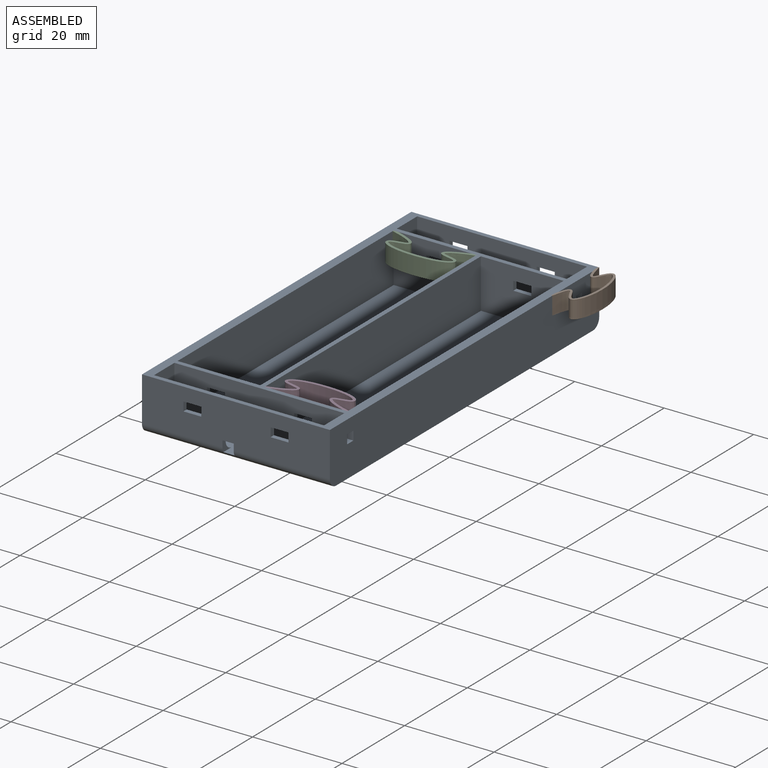
[diagram: assembled view]
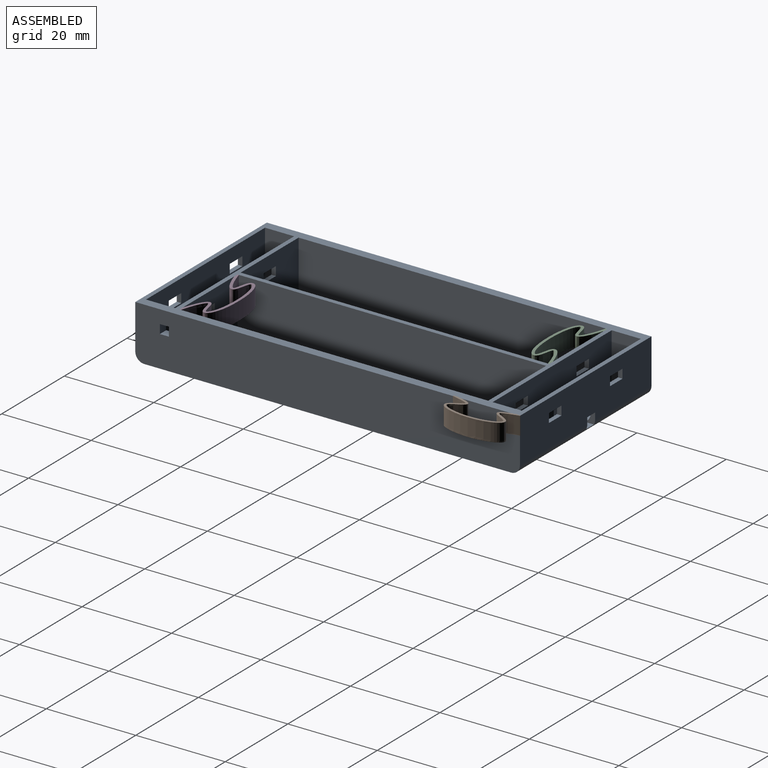
[diagram: assembled view, second angle]
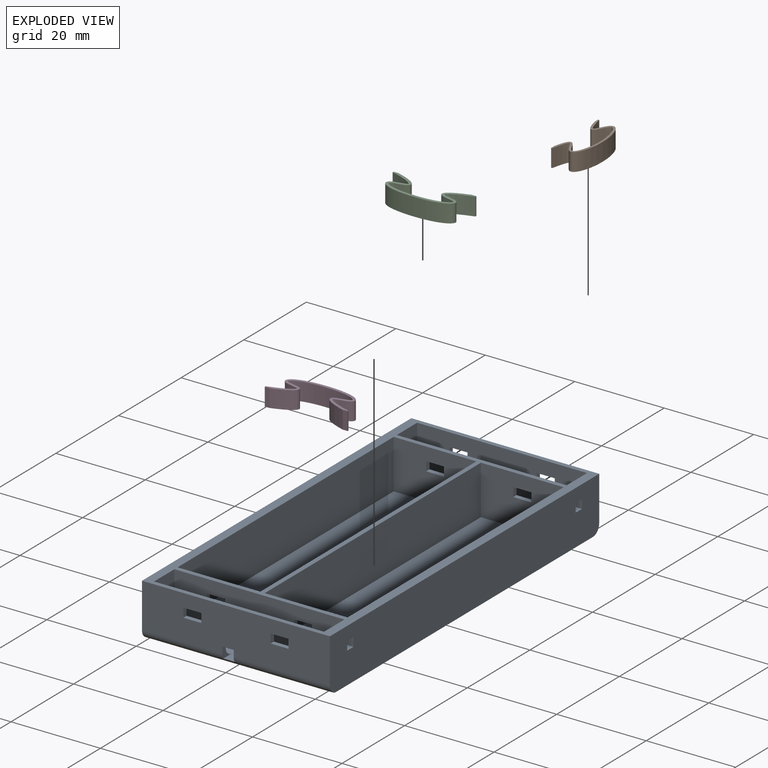
[diagram: exploded view]
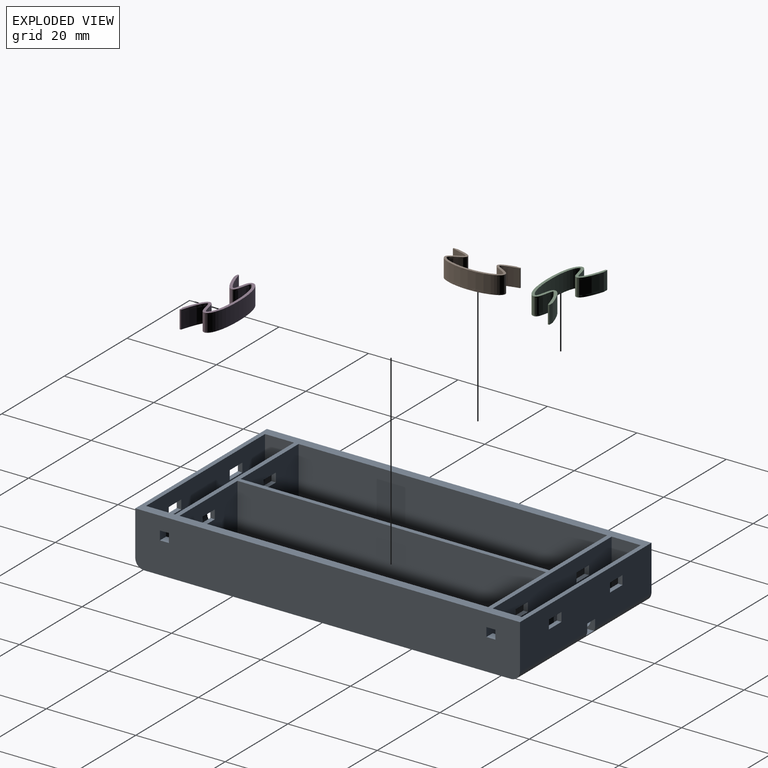
[diagram: exploded view, second angle]
ASSEMBLY  parts=4 mates=3
PART A: 78 faces, bbox 86x42x12 mm
  f0: plane 86x12mm, normal (0,1,0), area 1022.3mm2, adj f2,f3,f6,f7,f20,f21,f66,f67
  f1: plane 11x6.5mm, normal (0,-1,0), area 66.6mm2, adj f7,f8,f20,f22,f66,f67,f68,f75
  f2: plane 42x10mm, normal (-1,0,0), area 400.2mm2, adj f0,f15,f20,f24,f25,f26,f27,f52
  f3: plane 42x10mm, normal (1,0,0), area 400.2mm2, adj f0,f15,f20,f28,f29,f30,f31,f59
  f4: plane 18.5x11mm, normal (-1,0,0), area 189.2mm2, adj f14,f17,f20,f22,f46,f47,f48,f49
  f5: plane 18.5x11mm, normal (1,0,0), area 189.2mm2, adj f14,f17,f20,f22,f40,f41,f42,f43
  f6: plane 40x11mm, normal (-1,0,0), area 399.8mm2, adj f0,f12,f13,f17,f20,f22,f36,f37
  f7: plane 40x11mm, normal (1,0,0), area 399.7mm2, adj f0,f1,f17,f18,f20,f22,f32,f33
  f8: plane 38x9mm, normal (-1,0,0), area 324.8mm2, adj f1,f18,f20,f28,f29,f30,f31,f59
  f9: plane 18.5x11mm, normal (1,0,0), area 195.5mm2, adj f16,f19,f20,f23,f36,f37,f38,f39
  f10: plane 18.5x11mm, normal (-1,0,0), area 195.5mm2, adj f16,f19,f20,f23,f32,f33,f34,f35
  f11: plane 38x9mm, normal (1,0,0), area 324.8mm2, adj f12,f13,f20,f24,f25,f26,f27,f52
  f12: plane 11x6.5mm, normal (0,-1,0), area 66.6mm2, adj f6,f11,f20,f22,f69,f70,f71,f74
  f13: plane 11x6.5mm, normal (0,1,0), area 70.6mm2, adj f6,f11,f20,f22,f73
  f14: plane 69x11mm, normal (0,1,0), area 759mm2, adj f4,f5,f20,f22
  f15: plane 86x12mm, normal (0,-1,0), area 1030.3mm2, adj f2,f3,f20,f21,f76,f77
  f16: plane 69x11mm, normal (0,-1,0), area 759mm2, adj f9,f10,f20,f23
  f17: plane 71x11mm, normal (0,-1,0), area 764mm2, adj f4,f5,f6,f7,f20,f22,f41,f47
  f18: plane 11x6.5mm, normal (0,1,0), area 70.6mm2, adj f7,f8,f20,f22,f72
  f19: plane 69x11mm, normal (0,1,0), area 759mm2, adj f9,f10,f20,f23
  f20: plane 86x42mm, normal (0,0,1), area 565mm2, adj f0,f1,f2,f3,f4,f5,f6,f7
  f21: plane 82x42mm, normal (0,0,-1), area 3444mm2, adj f0,f15,f76,f77
  f22: plane 85.46x38mm, normal (0,0,1), area 1637.2mm2, adj f1,f4,f5,f6,f7,f12,f13,f14
  f23: plane 69x18.5mm, normal (0,0,1), area 1276.5mm2, adj f9,f10,f16,f19
  f24: plane 2x1mm, normal (0,1,0), area 2mm2, adj f2,f11,f25,f27
  f25: plane 4x1mm, normal (0,0,-1), area 4mm2, adj f2,f11,f24,f26
  f26: plane 2x1mm, normal (0,-1,0), area 2mm2, adj f2,f11,f25,f27
  f27: plane 4x1mm, normal (0,0,1), area 4mm2, adj f2,f11,f24,f26
  f28: plane 2x1mm, normal (0,1,0), area 2mm2, adj f3,f8,f29,f31
  f29: plane 4x1mm, normal (0,0,-1), area 4mm2, adj f3,f8,f28,f30
  f30: plane 2x1mm, normal (0,-1,0), area 2mm2, adj f3,f8,f29,f31
  f31: plane 4x1mm, normal (0,0,1), area 4mm2, adj f3,f8,f28,f30
  f32: plane 2x1mm, normal (0,1,0), area 2mm2, adj f7,f10,f33,f35
  f33: plane 4x1mm, normal (0,0,-1), area 4mm2, adj f7,f10,f32,f34
  f34: plane 2x1mm, normal (0,-1,0), area 2mm2, adj f7,f10,f33,f35
  f35: plane 4x1mm, normal (0,0,1), area 4mm2, adj f7,f10,f32,f34
  f36: plane 4x1mm, normal (0,0,1), area 4mm2, adj f6,f9,f37,f39
  f37: plane 2x1mm, normal (0,-1,0), area 2mm2, adj f6,f9,f36,f38
  f38: plane 4x1mm, normal (0,0,-1), area 4mm2, adj f6,f9,f37,f39
  f39: plane 2x1mm, normal (0,1,0), area 2mm2, adj f6,f9,f36,f38
  f40: plane 2.5x1mm, normal (0,1,0), area 2.5mm2, adj f5,f6,f22,f41
  f41: plane 2.5x1mm, normal (0,0,-1), area 2.5mm2, adj f5,f6,f17,f40
  f42: plane 4x1mm, normal (0,0,-1), area 4mm2, adj f5,f6,f43,f45
  f43: plane 2x1mm, normal (0,-1,0), area 2mm2, adj f5,f6,f42,f44
  f44: plane 4x1mm, normal (0,0,1), area 4mm2, adj f5,f6,f43,f45
  f45: plane 2x1mm, normal (0,1,0), area 2mm2, adj f5,f6,f42,f44
  f46: plane 2.5x1mm, normal (0,1,0), area 2.5mm2, adj f4,f7,f22,f47
  f47: plane 2.5x1mm, normal (0,0,-1), area 2.5mm2, adj f4,f7,f17,f46
  f48: plane 4x1mm, normal (0,0,-1), area 4mm2, adj f4,f7,f49,f51
  f49: plane 2x1mm, normal (0,-1,0), area 2mm2, adj f4,f7,f48,f50
  f50: plane 4x1mm, normal (0,0,1), area 4mm2, adj f4,f7,f49,f51
  f51: plane 2x1mm, normal (0,1,0), area 2mm2, adj f4,f7,f48,f50
  f52: plane 3x2.5mm, normal (0,-1,0), area 3.3mm2, adj f2,f11,f22,f54,f74,f77
  f53: plane 3x2.5mm, normal (0,1,0), area 3.3mm2, adj f2,f11,f22,f54,f73,f77
  f54: plane 2.5x1mm, normal (0,0,-1), area 2.5mm2, adj f2,f11,f52,f53
  f55: plane 4x1mm, normal (0,0,-1), area 4mm2, adj f2,f11,f56,f58
  f56: plane 2x1mm, normal (0,-1,0), area 2mm2, adj f2,f11,f55,f57
  f57: plane 4x1mm, normal (0,0,1), area 4mm2, adj f2,f11,f56,f58
  f58: plane 2x1mm, normal (0,1,0), area 2mm2, adj f2,f11,f55,f57
  f59: plane 3x2.5mm, normal (0,-1,0), area 3.3mm2, adj f3,f8,f22,f60,f75,f76
  f60: plane 2.5x1mm, normal (0,0,-1), area 2.5mm2, adj f3,f8,f59,f61
  f61: plane 3x2.5mm, normal (0,1,0), area 3.3mm2, adj f3,f8,f22,f60,f72,f76
  f62: plane 2x1mm, normal (0,1,0), area 2mm2, adj f3,f8,f63,f65
  f63: plane 4x1mm, normal (0,0,1), area 4mm2, adj f3,f8,f62,f64
  f64: plane 2x1mm, normal (0,-1,0), area 2mm2, adj f3,f8,f63,f65
  f65: plane 4x1mm, normal (0,0,-1), area 4mm2, adj f3,f8,f62,f64
  f66: plane 2x2mm, normal (0,0,1), area 4mm2, adj f0,f1,f7,f67
  f67: plane 2x2mm, normal (-1,0,0), area 4mm2, adj f0,f1,f66,f68
  f68: plane 2x2mm, normal (0,0,-1), area 4mm2, adj f0,f1,f7,f67
  f69: plane 2x2mm, normal (0,0,1), area 4mm2, adj f0,f6,f12,f71
  f70: plane 2x2mm, normal (0,0,-1), area 4mm2, adj f0,f6,f12,f71
  f71: plane 2x2mm, normal (1,0,0), area 4mm2, adj f0,f12,f69,f70
  f72: cylinder r=2mm len=16mm, axis (0,-1,0), area 50.3mm2, adj f8,f18,f22,f61
  f73: cylinder r=2mm len=16mm, axis (0,1,0), area 50.3mm2, adj f11,f13,f22,f53
  f74: cylinder r=2mm len=19.5mm, axis (0,1,0), area 61.3mm2, adj f11,f12,f22,f52
  f75: cylinder r=2mm len=19.5mm, axis (0,-1,0), area 61.3mm2, adj f1,f8,f22,f59
  f76: cylinder r=2mm len=42mm, axis (0,1,0), area 129.3mm2, adj f0,f3,f15,f21,f22,f59,f61
  f77: cylinder r=2mm len=42mm, axis (0,-1,0), area 129.3mm2, adj f0,f2,f15,f21,f22,f52,f53
PART B: 10 faces, bbox 15x6.3x4 mm
  f0: plane 4x0.26mm, normal (-1,0,0), area 1mm2, adj f1,f7,f8,f9
  f1: plane 4x1.11mm, normal (0,-1,0), area 4.4mm2, adj f0,f2,f8,f9
  f2: extruded ~6.4x5.75mm, area 57.6mm2, adj f1,f3,f8,f9
  f3: extruded ~6.4x5.75mm, area 57.6mm2, adj f2,f4,f8,f9
  f4: plane 4x1.11mm, normal (0,-1,0), area 4.4mm2, adj f3,f5,f8,f9
  f5: plane 4x0.26mm, normal (1,0,0), area 1mm2, adj f4,f6,f8,f9
  f6: extruded ~7.5x5.99mm, area 62mm2, adj f5,f7,f8,f9
  f7: extruded ~7.5x5.99mm, area 62mm2, adj f0,f6,f8,f9
  f8: plane 15.01x6.26mm, normal (0,0,1), area 15.3mm2, adj f0,f1,f2,f3,f4,f5,f6,f7
  f9: plane 15.01x6.26mm, normal (0,0,-1), area 15.3mm2, adj f0,f1,f2,f3,f4,f5,f6,f7
PART C: 10 faces, bbox 6.8x18.5x4 mm
  f0: extruded ~8.18x6.2mm, area 70.7mm2, adj f1,f7,f8,f9
  f1: plane 4x1.07mm, normal (-1,0,0), area 4.3mm2, adj f0,f2,f8,f9
  f2: plane 4x0.31mm, normal (0,-1,0), area 1.2mm2, adj f1,f3,f8,f9
  f3: extruded ~9.25x6.49mm, area 75.1mm2, adj f2,f4,f8,f9
  f4: extruded ~9.25x6.49mm, area 75.1mm2, adj f3,f5,f8,f9
  f5: plane 4x0.31mm, normal (0,1,0), area 1.2mm2, adj f4,f6,f8,f9
  f6: plane 4x1.07mm, normal (-1,0,0), area 4.3mm2, adj f5,f7,f8,f9
  f7: extruded ~8.18x6.2mm, area 70.7mm2, adj f0,f6,f8,f9
  f8: plane 18.53x6.81mm, normal (0,0,1), area 22.2mm2, adj f0,f1,f2,f3,f4,f5,f6,f7
  f9: plane 18.53x6.81mm, normal (0,0,-1), area 22.2mm2, adj f0,f1,f2,f3,f4,f5,f6,f7
PART D: same geometry as C
PLACE A rot(axis=(0,0,-1),90deg) t=(-58.8,-165.73,-10.86)mm
PLACE B rot(axis=(0,0,-1),90deg) t=(-59.57,-163.25,-2.86)mm
PLACE C rot(axis=(0,0,-1),90deg) t=(-58.8,-165.73,-7.86)mm
PLACE D rot(axis=(0,0,1),90deg) t=(-96.8,-28.01,-7.86)mm
MATE fastened C.f8 <-> A.f20  axis (0,0,-1) through (-96.8,-62.37,1.14)mm
MATE fastened D.f8 <-> A.f20  axis (0,0,1) through (-77.3,-131.37,1.14)mm
MATE fastened B.f8 <-> A.f20  axis (0,0,1) through (-56.8,-53.87,1.14)mm
